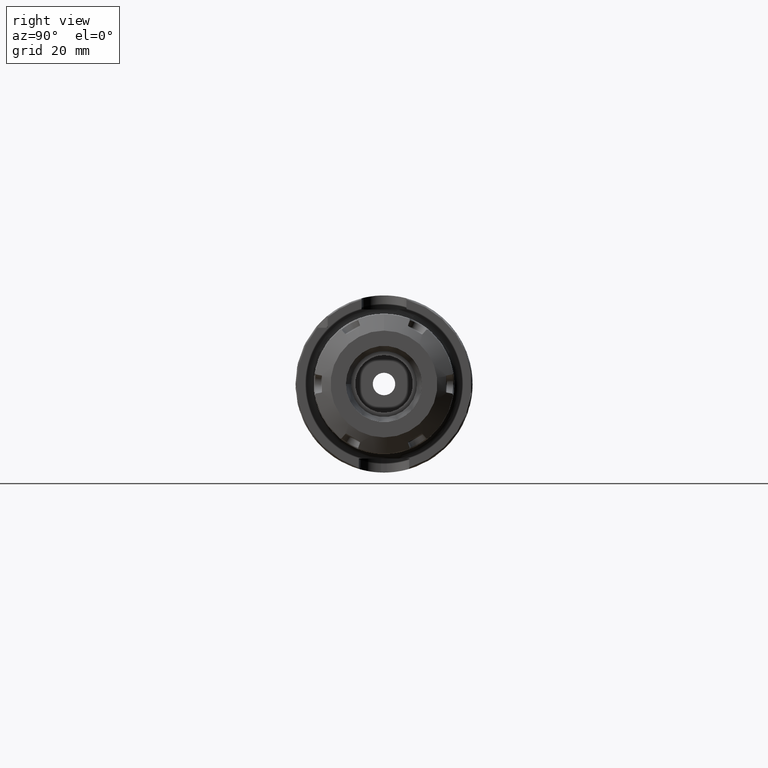
[diagram: clean part render]
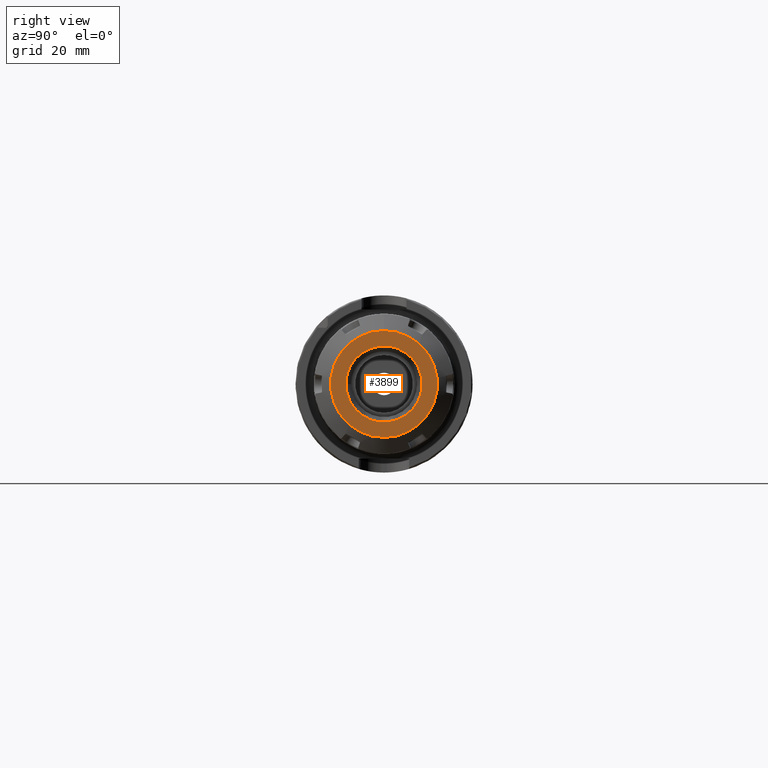
[diagram: same view with one face highlighted and labeled with its STEP entity id]
A machine part, right view. The second image highlights one B-rep face of the part: STEP entity #3899.
In plain terms, the highlighted planar face has unit normal (1, -0, -0).
Its self-contained STEP definition (entity closure, byte-faithful):
#669=FACE_BOUND('',#1108,.T.);
#719=PLANE('',#4418);
#885=FACE_OUTER_BOUND('',#1107,.T.);
#1107=EDGE_LOOP('',(#3346));
#1108=EDGE_LOOP('',(#3347));
#1736=CIRCLE('',#4417,13.55);
#1737=CIRCLE('',#4419,19.);
#2004=VERTEX_POINT('',#7453);
#2005=VERTEX_POINT('',#7457);
#2466=EDGE_CURVE('',#2004,#2004,#1736,.T.);
#2467=EDGE_CURVE('',#2005,#2005,#1737,.T.);
#3346=ORIENTED_EDGE('',*,*,#2467,.T.);
#3347=ORIENTED_EDGE('',*,*,#2466,.F.);
#3899=ADVANCED_FACE('',(#885,#669),#719,.T.);
#4417=AXIS2_PLACEMENT_3D('',#7455,#5308,#5309);
#4418=AXIS2_PLACEMENT_3D('',#7456,#5310,#5311);
#4419=AXIS2_PLACEMENT_3D('',#7458,#5312,#5313);
#5308=DIRECTION('center_axis',(1.,0.,0.));
#5309=DIRECTION('ref_axis',(0.,-1.,0.));
#5310=DIRECTION('center_axis',(1.,0.,0.));
#5311=DIRECTION('ref_axis',(0.,0.,-1.));
#5312=DIRECTION('center_axis',(1.,0.,0.));
#5313=DIRECTION('ref_axis',(0.,0.,1.));
#7453=CARTESIAN_POINT('',(11.25,13.55,1.65939641284466E-15));
#7455=CARTESIAN_POINT('Origin',(11.25,0.,0.));
#7456=CARTESIAN_POINT('Origin',(11.25,0.,0.));
#7457=CARTESIAN_POINT('',(11.25,0.,19.));
#7458=CARTESIAN_POINT('Origin',(11.25,0.,0.));